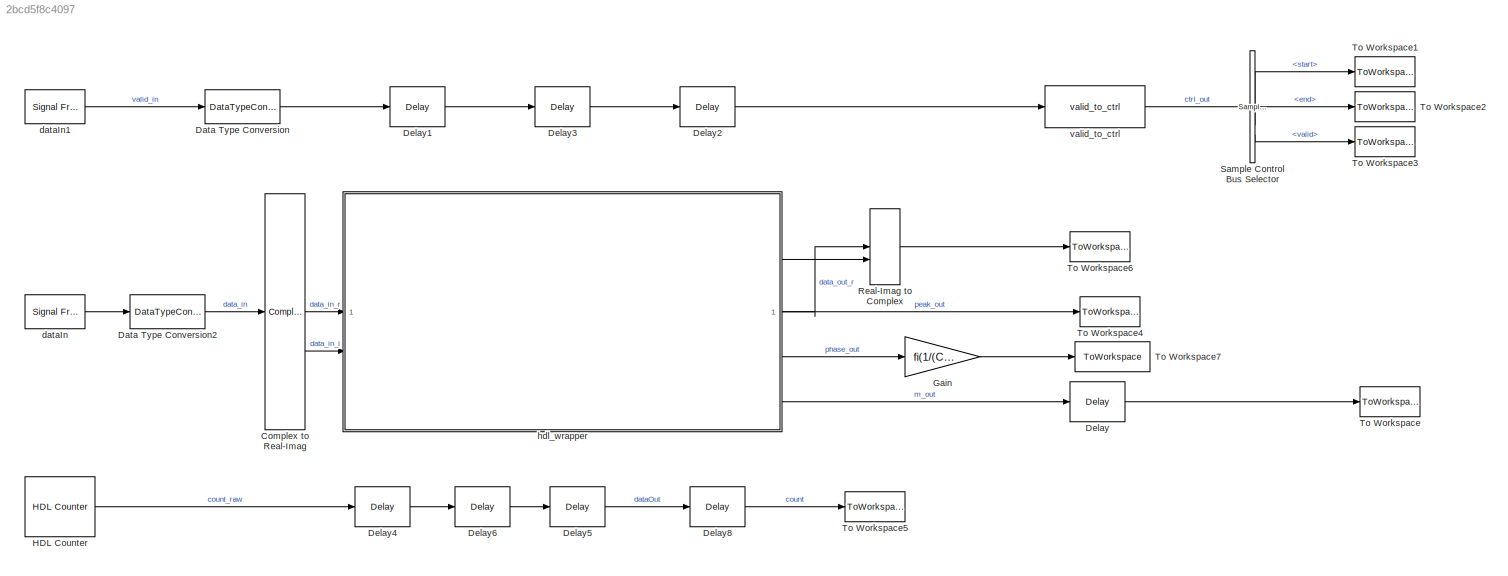
MODEL slx_2bcd5f8c4097
KIND model
CONFIG AbsTol = auto
CONFIG EnableMultiTasking = off
CONFIG FixedStep = auto
CONFIG MaxStep = auto
CONFIG MinStep = auto
CONFIG RelTol = 1e-3
CONFIG SampleTimeConstraint = Unconstrained
CONFIG SolverName = FixedStepDiscrete
CONFIG StartTime = 0.0
CONFIG StopTime = stopTime
BLOCK [ComplexToRealImag] Complex to Real-Imag
BLOCK [DataTypeConversion] Data Type Conversion
  OutDataTypeStr = boolean
  RndMeth = Floor
  SaturateOnIntegerOverflow = off
BLOCK [DataTypeConversion] Data Type Conversion2
  OutDataTypeStr = CONST.rxDecimatorOutputDataType
  RndMeth = Floor
  SaturateOnIntegerOverflow = off
BLOCK [Delay] Delay
  DelayLength = 1
  InitialCondition = 0
  InputPortMap = u0
  UseCircularBuffer = on
  UserDataPersistent = on
BLOCK [Delay] Delay1
  DelayLength = (CONST.N+CONST.preambleCyclicPrefixLen)*10
  InitialCondition = 0
  InputPortMap = u0
  UseCircularBuffer = on
  UserDataPersistent = on
BLOCK [Delay] Delay2
  DelayLength = CONST.rxRDividerDelay
  InitialCondition = 0
  InputPortMap = u0
  UseCircularBuffer = on
  UserDataPersistent = on
BLOCK [Delay] Delay3
  DelayLength = 12
  InitialCondition = 0
  InputPortMap = u0
  UseCircularBuffer = on
  UserDataPersistent = on
BLOCK [Delay] Delay4
  DelayLength = (CONST.N+CONST.preambleCyclicPrefixLen)*10
  InitialCondition = 0
  InputPortMap = u0
  UseCircularBuffer = on
  UserDataPersistent = on
BLOCK [Delay] Delay5
  DelayLength = CONST.rxRDividerDelay
  InitialCondition = 0
  InputPortMap = u0
  UseCircularBuffer = on
  UserDataPersistent = on
BLOCK [Delay] Delay6
  DelayLength = 12
  InitialCondition = 0
  InputPortMap = u0
  UseCircularBuffer = on
  UserDataPersistent = on
BLOCK [Delay] Delay8
  DelayLength = CONST.peakDetectorWindow
  InitialCondition = 0
  InputPortMap = u0
  UseCircularBuffer = on
  UserDataPersistent = on
BLOCK [Gain] Gain
  Gain = fi(1/(CONST.frequencyOffsetTimeWindow), 0, 32, 16)
  OutDataTypeStr = int16
  ParamDataTypeStr = fixdt(0,32,16)
BLOCK [Reference] HDL Counter  REF=hdlsllib/Sources/HDL Counter
  SourceBlock = hdlsllib/Sources/HDL Counter
  SourceType = HDL Counter
BLOCK [RealImagToComplex] Real-Imag to Complex
BLOCK [Reference] Sample Control Bus Selector  REF=whdlutilities/Sample Control
Bus Selector
  SourceBlock = whdlutilities/Sample Control\nBus Selector
BLOCK [ToWorkspace] To Workspace
  MaxDataPoints = inf
  SampleTime = 1/CONST.fPHY
  Save2DSignal = 2-D array (concatenate along first dimension)
  VariableName = mOut
BLOCK [ToWorkspace] To Workspace1
  MaxDataPoints = inf
  SampleTime = 1/CONST.fPHY
  Save2DSignal = 2-D array (concatenate along first dimension)
  VariableName = startOut
BLOCK [ToWorkspace] To Workspace2
  MaxDataPoints = inf
  SampleTime = 1/CONST.fPHY
  Save2DSignal = 2-D array (concatenate along first dimension)
  VariableName = endOut
BLOCK [ToWorkspace] To Workspace3
  MaxDataPoints = inf
  SampleTime = 1/CONST.fPHY
  Save2DSignal = 2-D array (concatenate along first dimension)
  VariableName = validOut
BLOCK [ToWorkspace] To Workspace4
  MaxDataPoints = inf
  SampleTime = 1/CONST.fPHY
  Save2DSignal = 2-D array (concatenate along first dimension)
  VariableName = peakOut
BLOCK [ToWorkspace] To Workspace5
  MaxDataPoints = inf
  SampleTime = 1/CONST.fPHY
  Save2DSignal = 2-D array (concatenate along first dimension)
  VariableName = indexOut
BLOCK [ToWorkspace] To Workspace6
  MaxDataPoints = inf
  SampleTime = 1/CONST.fPHY
  Save2DSignal = 2-D array (concatenate along first dimension)
  VariableName = dataOut
BLOCK [ToWorkspace] To Workspace7
  MaxDataPoints = inf
  SampleTime = 1/CONST.fPHY
  Save2DSignal = 2-D array (concatenate along first dimension)
  VariableName = frequencyOut
BLOCK [Reference] dataIn  REF=dspsrcs4/Signal From
Workspace
  SourceBlock = dspsrcs4/Signal From\nWorkspace
  SourceType = Signal From Workspace
BLOCK [Reference] dataIn1  REF=dspsrcs4/Signal From
Workspace
  SourceBlock = dspsrcs4/Signal From\nWorkspace
  SourceType = Signal From Workspace
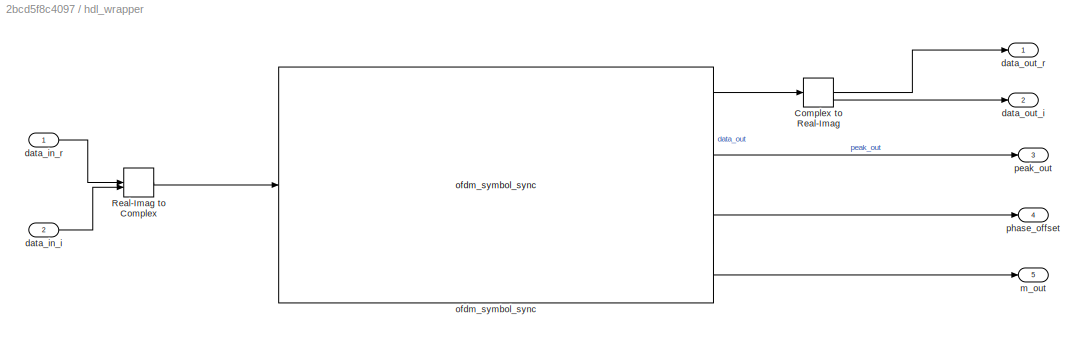
BLOCK [SubSystem] hdl_wrapper
  TreatAsAtomicUnit = on
BLOCK [ComplexToRealImag] hdl_wrapper/Complex to Real-Imag
BLOCK [RealImagToComplex] hdl_wrapper/Real-Imag to Complex
BLOCK [Inport] hdl_wrapper/data_in_i
  Port = 2
BLOCK [Inport] hdl_wrapper/data_in_r
BLOCK [Outport] hdl_wrapper/data_out_i
  Port = 2
BLOCK [Outport] hdl_wrapper/data_out_r
BLOCK [Outport] hdl_wrapper/m_out
  Port = 5
BLOCK [Reference] hdl_wrapper/ofdm_symbol_sync  REF=HDL_ieee_8021513/ofdm_symbol_sync
  SourceBlock = HDL_ieee_8021513/ofdm_symbol_sync
  SourceProductName = HDL IEEE 8021513
  SourceType = SubSystem
BLOCK [Outport] hdl_wrapper/peak_out
  Port = 3
BLOCK [Outport] hdl_wrapper/phase_offset
  Port = 4
BLOCK [Reference] valid_to_ctrl  REF=HDL_ieee_8021513/valid_to_ctrl
  SourceBlock = HDL_ieee_8021513/valid_to_ctrl
  SourceProductName = HDL IEEE 8021513
  SourceType = SubSystem
LINE Complex to Real-Imag:1 -> hdl_wrapper:1
LINE Complex to Real-Imag:2 -> hdl_wrapper:2
LINE Data Type Conversion2:1 -> Complex to Real-Imag:1
LINE Data Type Conversion:1 -> Delay1:1
LINE Delay1:1 -> Delay3:1
LINE Delay2:1 -> valid_to_ctrl:1
LINE Delay3:1 -> Delay2:1
LINE Delay4:1 -> Delay6:1
LINE Delay5:1 -> Delay8:1
LINE Delay6:1 -> Delay5:1
LINE Delay8:1 -> To Workspace5:1
LINE Delay:1 -> To Workspace:1
LINE Gain:1 -> To Workspace7:1
LINE HDL Counter:1 -> Delay4:1
LINE Real-Imag to Complex:1 -> To Workspace6:1
LINE Sample Control Bus Selector:1 -> To Workspace1:1
LINE Sample Control Bus Selector:2 -> To Workspace2:1
LINE Sample Control Bus Selector:3 -> To Workspace3:1
LINE dataIn1:1 -> Data Type Conversion:1
LINE dataIn:1 -> Data Type Conversion2:1
LINE hdl_wrapper/Complex to Real-Imag:1 -> hdl_wrapper/data_out_r:1
LINE hdl_wrapper/Complex to Real-Imag:2 -> hdl_wrapper/data_out_i:1
LINE hdl_wrapper/Real-Imag to Complex:1 -> hdl_wrapper/ofdm_symbol_sync:1
LINE hdl_wrapper/data_in_i:1 -> hdl_wrapper/Real-Imag to Complex:2
LINE hdl_wrapper/data_in_r:1 -> hdl_wrapper/Real-Imag to Complex:1
LINE hdl_wrapper/ofdm_symbol_sync:1 -> hdl_wrapper/Complex to Real-Imag:1
LINE hdl_wrapper/ofdm_symbol_sync:2 -> hdl_wrapper/peak_out:1
LINE hdl_wrapper/ofdm_symbol_sync:3 -> hdl_wrapper/phase_offset:1
LINE hdl_wrapper/ofdm_symbol_sync:4 -> hdl_wrapper/m_out:1
LINE hdl_wrapper:1 -> Real-Imag to Complex:1
LINE hdl_wrapper:2 -> Real-Imag to Complex:2
LINE hdl_wrapper:3 -> To Workspace4:1
LINE hdl_wrapper:4 -> Gain:1
LINE hdl_wrapper:5 -> Delay:1
LINE valid_to_ctrl:1 -> Sample Control Bus Selector:1
